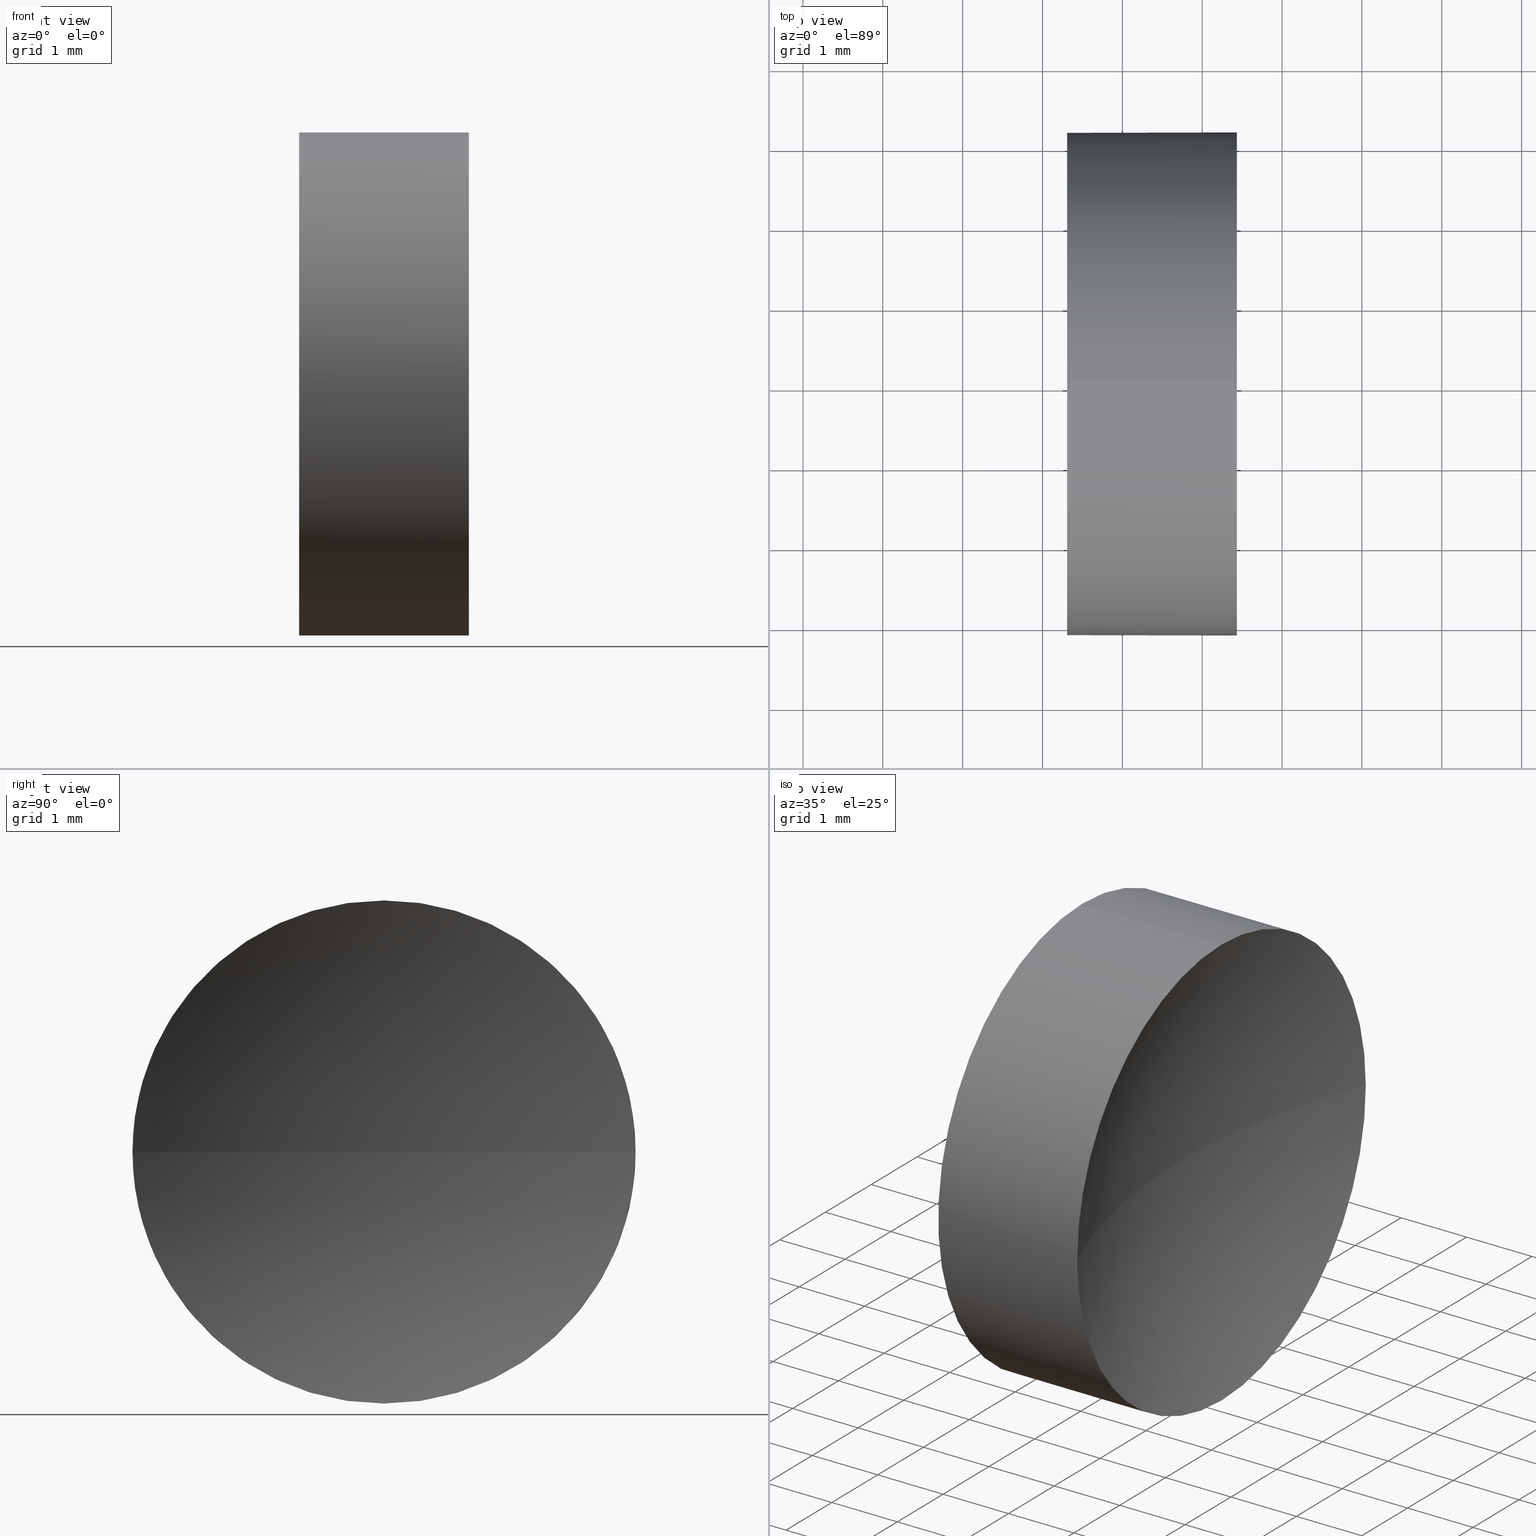
[diagram: canonical four-view strip — front | top / right | iso, engineering-drawing reading convention]
A machine part, canonical four-view strip (front | top / right | iso — engineering-drawing reading convention). The complete STEP part file that produces these views, byte-faithful:
ISO-10303-21;
HEADER;
FILE_DESCRIPTION (( 'STEP AP214' ),
    '1' );
FILE_NAME ('120126.STEP',
    '2019-06-19T01:53:44',
    ( '' ),
    ( '' ),
    'SwSTEP 2.0',
    'SolidWorks 2016',
    '' );
FILE_SCHEMA (( 'AUTOMOTIVE_DESIGN' ));
ENDSEC;

DATA;
#1 = CIRCLE ( 'NONE', #183, 3.149999999999998100 ) ;
#2 = ADVANCED_FACE ( 'NONE', ( #108 ), #65, .F. ) ;
#3 = UNCERTAINTY_MEASURE_WITH_UNIT (LENGTH_MEASURE( 1.000000000000000100E-005 ), #171, 'distance_accuracy_value', 'NONE');
#4 = COLOUR_RGB ( '',1.000000000000000000, 1.000000000000000000, 1.000000000000000000 ) ;
#5 = ADVANCED_FACE ( 'NONE', ( #35 ), #177, .F. ) ;
#6 = CIRCLE ( 'NONE', #115, 3.149999999999998100 ) ;
#7 = EDGE_CURVE ( 'NONE', #75, #162, #1, .T. ) ;
#8 = VERTEX_POINT ( 'NONE', #95 ) ;
#9 = PRODUCT_DEFINITION_FORMATION_WITH_SPECIFIED_SOURCE ( '�κ�', '', #18, .NOT_KNOWN. ) ;
#10 = ORIENTED_EDGE ( 'NONE', *, *, #31, .F. ) ;
#11 = CARTESIAN_POINT ( 'NONE',  ( 24.43349120354416800, 13.03112609140304000, 0.0000000000000000000 ) ) ;
#12 = CARTESIAN_POINT ( 'NONE',  ( 24.43349120354416800, 9.881126091403041700, 0.0000000000000000000 ) ) ;
#13 = EDGE_LOOP ( 'NONE', ( #172, #34, #10, #120 ) ) ;
#14 = SURFACE_SIDE_STYLE ('',( #59 ) ) ;
#15 = UNCERTAINTY_MEASURE_WITH_UNIT (LENGTH_MEASURE( 1.000000000000000100E-005 ), #42, 'distance_accuracy_value', 'NONE');
#16 =( NAMED_UNIT ( * ) PLANE_ANGLE_UNIT ( ) SI_UNIT ( $, .RADIAN. ) );
#17 = EDGE_CURVE ( 'NONE', #45, #162, #158, .T. ) ;
#18 = PRODUCT ( '120126', '120126', '', ( #118 ) ) ;
#19 = AXIS2_PLACEMENT_3D ( 'NONE', #155, #69, #146 ) ;
#20 = EDGE_LOOP ( 'NONE', ( #52, #46, #164, #130 ) ) ;
#21 = PRODUCT_DEFINITION_SHAPE ( 'NONE', 'NONE',  #151 ) ;
#22 = SPHERICAL_SURFACE ( 'NONE', #135, 8.259999999999996200 ) ;
#23 = ORIENTED_EDGE ( 'NONE', *, *, #152, .F. ) ;
#24 = DIRECTION ( 'NONE',  ( 1.000000000000000000, 0.0000000000000000000, 0.0000000000000000000 ) ) ;
#25 = DIRECTION ( 'NONE',  ( 0.0000000000000000000, 0.0000000000000000000, 1.000000000000000000 ) ) ;
#26 = LINE ( 'NONE', #127, #33 ) ;
#27 = DIRECTION ( 'NONE',  ( 0.0000000000000000000, 0.0000000000000000000, 1.000000000000000000 ) ) ;
#28 = DIRECTION ( 'NONE',  ( 0.0000000000000000000, 0.0000000000000000000, 1.000000000000000000 ) ) ;
#29 = PRESENTATION_LAYER_ASSIGNMENT (  '', '', ( #159 ) ) ;
#30 = CYLINDRICAL_SURFACE ( 'NONE', #119, 3.149999999999998100 ) ;
#31 = EDGE_CURVE ( 'NONE', #179, #144, #37, .T. ) ;
#32 = SURFACE_STYLE_FILL_AREA ( #147 ) ;
#33 = VECTOR ( 'NONE', #167, 1000.000000000000000 ) ;
#34 = ORIENTED_EDGE ( 'NONE', *, *, #94, .F. ) ;
#35 = FACE_OUTER_BOUND ( 'NONE', #96, .T. ) ;
#36 = EDGE_CURVE ( 'NONE', #8, #149, #44, .T. ) ;
#37 = CIRCLE ( 'NONE', #110, 3.149999999999998100 ) ;
#38 = ORIENTED_EDGE ( 'NONE', *, *, #94, .T. ) ;
#39 = DIRECTION ( 'NONE',  ( -1.000000000000000000, -0.0000000000000000000, -0.0000000000000000000 ) ) ;
#40 = FILL_AREA_STYLE_COLOUR ( '', #176 ) ;
#41 = EDGE_CURVE ( 'NONE', #8, #45, #6, .T. ) ;
#42 =( LENGTH_UNIT ( ) NAMED_UNIT ( * ) SI_UNIT ( .MILLI., .METRE. ) );
#43 = FILL_AREA_STYLE ('',( #40 ) ) ;
#44 = CIRCLE ( 'NONE', #97, 8.259999999999996200 ) ;
#45 = VERTEX_POINT ( 'NONE', #132 ) ;
#46 = ORIENTED_EDGE ( 'NONE', *, *, #36, .T. ) ;
#47 = CARTESIAN_POINT ( 'NONE',  ( 24.43349120354416800, 13.03112609140304000, 0.0000000000000000000 ) ) ;
#48 = FACE_OUTER_BOUND ( 'NONE', #20, .T. ) ;
#49 = DIRECTION ( 'NONE',  ( 0.0000000000000000000, -1.000000000000000000, 0.0000000000000000000 ) ) ;
#50 = ORIENTED_EDGE ( 'NONE', *, *, #31, .T. ) ;
#51 = DIRECTION ( 'NONE',  ( 0.0000000000000000000, 0.0000000000000000000, -1.000000000000000000 ) ) ;
#52 = ORIENTED_EDGE ( 'NONE', *, *, #41, .F. ) ;
#53 = DIRECTION ( 'NONE',  ( -1.000000000000000000, -0.0000000000000000000, -0.0000000000000000000 ) ) ;
#54 = ORIENTED_EDGE ( 'NONE', *, *, #17, .F. ) ;
#55 = DIRECTION ( 'NONE',  ( -1.000000000000000000, -0.0000000000000000000, -0.0000000000000000000 ) ) ;
#56 = CARTESIAN_POINT ( 'NONE',  ( 20.68403063513288800, 13.03112609140304000, 0.0000000000000000000 ) ) ;
#57 = DIRECTION ( 'NONE',  ( -1.000000000000000000, -0.0000000000000000000, -0.0000000000000000000 ) ) ;
#58 = APPLICATION_PROTOCOL_DEFINITION ( 'draft international standard', 'automotive_design', 1998, #73 ) ;
#59 = SURFACE_STYLE_FILL_AREA ( #43 ) ;
#60 = PRESENTATION_LAYER_ASSIGNMENT (  '', '', ( #78 ) ) ;
#61 = EDGE_LOOP ( 'NONE', ( #54, #79, #50, #138, #23 ) ) ;
#62 =( NAMED_UNIT ( * ) SI_UNIT ( $, .STERADIAN. ) SOLID_ANGLE_UNIT ( ) );
#63 = SHAPE_DEFINITION_REPRESENTATION ( #21, #89 ) ;
#64 = ORIENTED_EDGE ( 'NONE', *, *, #7, .T. ) ;
#65 = SPHERICAL_SURFACE ( 'NONE', #165, 8.259999999999996200 ) ;
#66 = CYLINDRICAL_SURFACE ( 'NONE', #141, 3.149999999999998100 ) ;
#67 =( GEOMETRIC_REPRESENTATION_CONTEXT ( 3 ) GLOBAL_UNCERTAINTY_ASSIGNED_CONTEXT ( ( #15 ) ) GLOBAL_UNIT_ASSIGNED_CONTEXT ( ( #42, #185, #104 ) ) REPRESENTATION_CONTEXT ( 'NONE', 'WORKASPACE' ) );
#68 = CARTESIAN_POINT ( 'NONE',  ( 20.68403063513288800, 13.03112609140304000, 0.0000000000000000000 ) ) ;
#69 = DIRECTION ( 'NONE',  ( -1.000000000000000000, -0.0000000000000000000, -0.0000000000000000000 ) ) ;
#70 = EDGE_LOOP ( 'NONE', ( #117, #166, #114, #92, #38 ) ) ;
#71 = DIRECTION ( 'NONE',  ( -1.000000000000000000, -0.0000000000000000000, -0.0000000000000000000 ) ) ;
#72 = DIRECTION ( 'NONE',  ( 0.0000000000000000000, 0.0000000000000000000, -1.000000000000000000 ) ) ;
#73 = APPLICATION_CONTEXT ( 'automotive_design' ) ;
#74 = EDGE_CURVE ( 'NONE', #45, #179, #82, .T. ) ;
#75 = VERTEX_POINT ( 'NONE', #111 ) ;
#76 = PRODUCT_DEFINITION_CONTEXT ( 'detailed design', #73, 'design' ) ;
#77 = ADVANCED_FACE ( 'NONE', ( #153 ), #30, .T. ) ;
#78 = STYLED_ITEM ( 'NONE', ( #174 ), #126 ) ;
#79 = ORIENTED_EDGE ( 'NONE', *, *, #74, .T. ) ;
#80 = EDGE_CURVE ( 'NONE', #144, #75, #26, .T. ) ;
#81 = DIRECTION ( 'NONE',  ( 0.0000000000000000000, -1.224646799147353200E-016, 1.000000000000000000 ) ) ;
#82 = CIRCLE ( 'NONE', #133, 3.149999999999998100 ) ;
#83 = SURFACE_SIDE_STYLE ('',( #32 ) ) ;
#84 = AXIS2_PLACEMENT_3D ( 'NONE', #139, #24, #51 ) ;
#85 = FILL_AREA_STYLE_COLOUR ( '', #4 ) ;
#86 = CARTESIAN_POINT ( 'NONE',  ( 24.43349120354416800, 13.03112609140304000, 0.0000000000000000000 ) ) ;
#87 = CARTESIAN_POINT ( 'NONE',  ( 0.0000000000000000000, 0.0000000000000000000, 0.0000000000000000000 ) ) ;
#88 = DIRECTION ( 'NONE',  ( 0.0000000000000000000, 0.0000000000000000000, 1.000000000000000000 ) ) ;
#89 = ADVANCED_BREP_SHAPE_REPRESENTATION ( '120126', ( #126, #90 ), #67 ) ;
#90 = AXIS2_PLACEMENT_3D ( 'NONE', #87, #88, #91 ) ;
#91 = DIRECTION ( 'NONE',  ( 1.000000000000000000, 0.0000000000000000000, 0.0000000000000000000 ) ) ;
#92 = ORIENTED_EDGE ( 'NONE', *, *, #80, .F. ) ;
#93 = PRODUCT_RELATED_PRODUCT_CATEGORY ( 'part', '', ( #18 ) ) ;
#94 = EDGE_CURVE ( 'NONE', #144, #8, #116, .T. ) ;
#95 = CARTESIAN_POINT ( 'NONE',  ( 24.43349120354416800, 16.18112609140303700, 3.857637417314160200E-016 ) ) ;
#96 = EDGE_LOOP ( 'NONE', ( #64, #124 ) ) ;
#97 = AXIS2_PLACEMENT_3D ( 'NONE', #182, #81, #129 ) ;
#98 = CARTESIAN_POINT ( 'NONE',  ( 22.30926883257449200, 13.03112609140304000, 0.0000000000000000000 ) ) ;
#99 = MECHANICAL_DESIGN_GEOMETRIC_PRESENTATION_REPRESENTATION (  '', ( #78 ), #109 ) ;
#100 = DIRECTION ( 'NONE',  ( 0.0000000000000000000, -1.000000000000000000, 0.0000000000000000000 ) ) ;
#101 = CARTESIAN_POINT ( 'NONE',  ( 32.06926883257449400, 13.03112609140304000, 0.0000000000000000000 ) ) ;
#102 = CARTESIAN_POINT ( 'NONE',  ( 22.30926883257449200, 13.03112609140304000, -3.149999999999998100 ) ) ;
#103 = DIRECTION ( 'NONE',  ( 0.0000000000000000000, 0.0000000000000000000, 1.000000000000000000 ) ) ;
#104 =( NAMED_UNIT ( * ) SI_UNIT ( $, .STERADIAN. ) SOLID_ANGLE_UNIT ( ) );
#105 = CIRCLE ( 'NONE', #123, 8.259999999999996200 ) ;
#106 = ADVANCED_FACE ( 'NONE', ( #178 ), #66, .T. ) ;
#107 = PRESENTATION_STYLE_ASSIGNMENT (( #148 ) ) ;
#108 = FACE_OUTER_BOUND ( 'NONE', #13, .T. ) ;
#109 =( GEOMETRIC_REPRESENTATION_CONTEXT ( 3 ) GLOBAL_UNCERTAINTY_ASSIGNED_CONTEXT ( ( #3 ) ) GLOBAL_UNIT_ASSIGNED_CONTEXT ( ( #171, #142, #168 ) ) REPRESENTATION_CONTEXT ( 'NONE', 'WORKASPACE' ) );
#110 = AXIS2_PLACEMENT_3D ( 'NONE', #47, #71, #28 ) ;
#111 = CARTESIAN_POINT ( 'NONE',  ( 22.30926883257449200, 13.03112609140304000, 3.149999999999998100 ) ) ;
#112 = DIRECTION ( 'NONE',  ( -1.000000000000000000, -0.0000000000000000000, -0.0000000000000000000 ) ) ;
#113 = DIRECTION ( 'NONE',  ( 0.0000000000000000000, 0.0000000000000000000, 1.000000000000000000 ) ) ;
#114 = ORIENTED_EDGE ( 'NONE', *, *, #7, .F. ) ;
#115 = AXIS2_PLACEMENT_3D ( 'NONE', #11, #39, #113 ) ;
#116 = CIRCLE ( 'NONE', #131, 3.149999999999998100 ) ;
#117 = ORIENTED_EDGE ( 'NONE', *, *, #41, .T. ) ;
#118 = PRODUCT_CONTEXT ( 'NONE', #157, 'mechanical' ) ;
#119 = AXIS2_PLACEMENT_3D ( 'NONE', #56, #57, #27 ) ;
#120 = ORIENTED_EDGE ( 'NONE', *, *, #163, .T. ) ;
#121 = UNCERTAINTY_MEASURE_WITH_UNIT (LENGTH_MEASURE( 1.000000000000000100E-005 ), #134, 'distance_accuracy_value', 'NONE');
#122 = CARTESIAN_POINT ( 'NONE',  ( 20.68403063513288800, 13.03112609140304000, -3.149999999999998100 ) ) ;
#123 = AXIS2_PLACEMENT_3D ( 'NONE', #156, #72, #173 ) ;
#124 = ORIENTED_EDGE ( 'NONE', *, *, #152, .T. ) ;
#125 = SURFACE_STYLE_USAGE ( .BOTH. , #83 ) ;
#126 = MANIFOLD_SOLID_BREP ( '��ת1', #175 ) ;
#127 = CARTESIAN_POINT ( 'NONE',  ( 20.68403063513288800, 13.03112609140304000, 3.149999999999998100 ) ) ;
#128 = CARTESIAN_POINT ( 'NONE',  ( 24.43349120354416800, 13.03112609140304000, 0.0000000000000000000 ) ) ;
#129 = DIRECTION ( 'NONE',  ( 0.0000000000000000000, -1.000000000000000000, -1.224646799147353200E-016 ) ) ;
#130 = ORIENTED_EDGE ( 'NONE', *, *, #74, .F. ) ;
#131 = AXIS2_PLACEMENT_3D ( 'NONE', #86, #112, #25 ) ;
#132 = CARTESIAN_POINT ( 'NONE',  ( 24.43349120354416800, 13.03112609140304000, -3.149999999999998100 ) ) ;
#133 = AXIS2_PLACEMENT_3D ( 'NONE', #128, #55, #143 ) ;
#134 =( LENGTH_UNIT ( ) NAMED_UNIT ( * ) SI_UNIT ( .MILLI., .METRE. ) );
#135 = AXIS2_PLACEMENT_3D ( 'NONE', #101, #145, #100 ) ;
#136 = CIRCLE ( 'NONE', #19, 3.149999999999998100 ) ;
#137 = DIRECTION ( 'NONE',  ( -1.000000000000000000, -0.0000000000000000000, -0.0000000000000000000 ) ) ;
#138 = ORIENTED_EDGE ( 'NONE', *, *, #80, .T. ) ;
#139 = CARTESIAN_POINT ( 'NONE',  ( 22.30926883257449200, 13.03112609140304000, 0.0000000000000000000 ) ) ;
#140 = CARTESIAN_POINT ( 'NONE',  ( 32.06926883257449400, 13.03112609140304000, 0.0000000000000000000 ) ) ;
#141 = AXIS2_PLACEMENT_3D ( 'NONE', #68, #154, #103 ) ;
#142 =( NAMED_UNIT ( * ) PLANE_ANGLE_UNIT ( ) SI_UNIT ( $, .RADIAN. ) );
#143 = DIRECTION ( 'NONE',  ( 0.0000000000000000000, 0.0000000000000000000, 1.000000000000000000 ) ) ;
#144 = VERTEX_POINT ( 'NONE', #169 ) ;
#145 = DIRECTION ( 'NONE',  ( 0.0000000000000000000, 0.0000000000000000000, 1.000000000000000000 ) ) ;
#146 = DIRECTION ( 'NONE',  ( 0.0000000000000000000, 0.0000000000000000000, 1.000000000000000000 ) ) ;
#147 = FILL_AREA_STYLE ('',( #85 ) ) ;
#148 = SURFACE_STYLE_USAGE ( .BOTH. , #14 ) ;
#149 = VERTEX_POINT ( 'NONE', #184 ) ;
#150 = DIRECTION ( 'NONE',  ( 0.0000000000000000000, 0.0000000000000000000, 1.000000000000000000 ) ) ;
#151 = PRODUCT_DEFINITION ( 'δ֪', '', #9, #76 ) ;
#152 = EDGE_CURVE ( 'NONE', #162, #75, #136, .T. ) ;
#153 = FACE_OUTER_BOUND ( 'NONE', #61, .T. ) ;
#154 = DIRECTION ( 'NONE',  ( -1.000000000000000000, -0.0000000000000000000, -0.0000000000000000000 ) ) ;
#155 = CARTESIAN_POINT ( 'NONE',  ( 22.30926883257449200, 13.03112609140304000, 0.0000000000000000000 ) ) ;
#156 = CARTESIAN_POINT ( 'NONE',  ( 32.06926883257449400, 13.03112609140304000, 0.0000000000000000000 ) ) ;
#157 = APPLICATION_CONTEXT ( 'automotive_design' ) ;
#158 = LINE ( 'NONE', #122, #161 ) ;
#159 = STYLED_ITEM ( 'NONE', ( #107 ), #89 ) ;
#160 = ADVANCED_FACE ( 'NONE', ( #48 ), #22, .F. ) ;
#161 = VECTOR ( 'NONE', #137, 1000.000000000000000 ) ;
#162 = VERTEX_POINT ( 'NONE', #102 ) ;
#163 = EDGE_CURVE ( 'NONE', #179, #149, #105, .T. ) ;
#164 = ORIENTED_EDGE ( 'NONE', *, *, #163, .F. ) ;
#165 = AXIS2_PLACEMENT_3D ( 'NONE', #140, #150, #49 ) ;
#166 = ORIENTED_EDGE ( 'NONE', *, *, #17, .T. ) ;
#167 = DIRECTION ( 'NONE',  ( -1.000000000000000000, -0.0000000000000000000, -0.0000000000000000000 ) ) ;
#168 =( NAMED_UNIT ( * ) SI_UNIT ( $, .STERADIAN. ) SOLID_ANGLE_UNIT ( ) );
#169 = CARTESIAN_POINT ( 'NONE',  ( 24.43349120354416800, 13.03112609140304000, 3.149999999999998100 ) ) ;
#170 = MECHANICAL_DESIGN_GEOMETRIC_PRESENTATION_REPRESENTATION (  '', ( #159 ), #180 ) ;
#171 =( LENGTH_UNIT ( ) NAMED_UNIT ( * ) SI_UNIT ( .MILLI., .METRE. ) );
#172 = ORIENTED_EDGE ( 'NONE', *, *, #36, .F. ) ;
#173 = DIRECTION ( 'NONE',  ( -1.000000000000000000, 0.0000000000000000000, 0.0000000000000000000 ) ) ;
#174 = PRESENTATION_STYLE_ASSIGNMENT (( #125 ) ) ;
#175 = CLOSED_SHELL ( 'NONE', ( #106, #160, #2, #77, #5 ) ) ;
#176 = COLOUR_RGB ( '',1.000000000000000000, 1.000000000000000000, 1.000000000000000000 ) ;
#177 = PLANE ( 'NONE',  #84 ) ;
#178 = FACE_OUTER_BOUND ( 'NONE', #70, .T. ) ;
#179 = VERTEX_POINT ( 'NONE', #12 ) ;
#180 =( GEOMETRIC_REPRESENTATION_CONTEXT ( 3 ) GLOBAL_UNCERTAINTY_ASSIGNED_CONTEXT ( ( #121 ) ) GLOBAL_UNIT_ASSIGNED_CONTEXT ( ( #134, #16, #62 ) ) REPRESENTATION_CONTEXT ( 'NONE', 'WORKASPACE' ) );
#181 = DIRECTION ( 'NONE',  ( 0.0000000000000000000, 0.0000000000000000000, 1.000000000000000000 ) ) ;
#182 = CARTESIAN_POINT ( 'NONE',  ( 32.06926883257449400, 13.03112609140304000, 0.0000000000000000000 ) ) ;
#183 = AXIS2_PLACEMENT_3D ( 'NONE', #98, #53, #181 ) ;
#184 = CARTESIAN_POINT ( 'NONE',  ( 23.80926883257449600, 13.03112609140304000, 0.0000000000000000000 ) ) ;
#185 =( NAMED_UNIT ( * ) PLANE_ANGLE_UNIT ( ) SI_UNIT ( $, .RADIAN. ) );
#186 = APPLICATION_PROTOCOL_DEFINITION ( 'draft international standard', 'automotive_design', 1998, #157 ) ;
ENDSEC;
END-ISO-10303-21;
